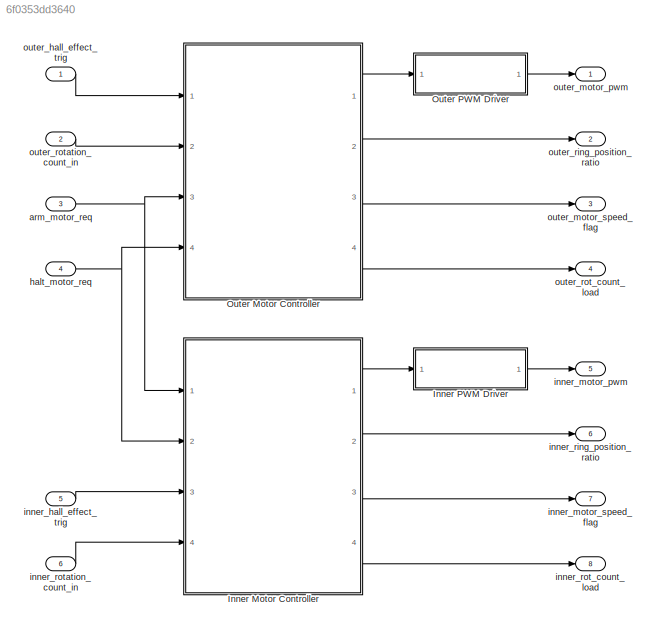
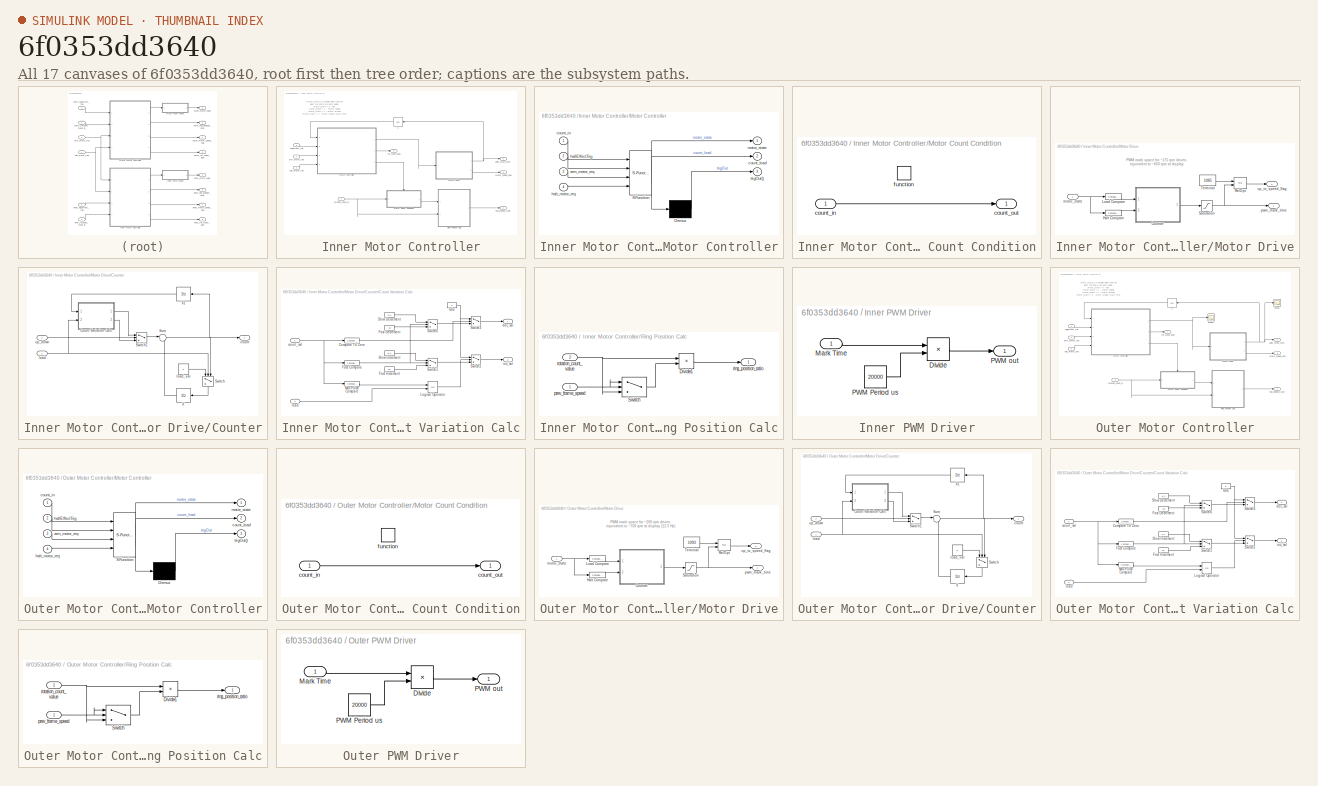
[diagram: thumbnail index - all 17 canvases of the model, root first then tree order]
MODEL slx_6f0353dd3640
KIND model
CONFIG AbsTol = auto
CONFIG EnableMultiTasking = on
CONFIG FixedStep = 1
CONFIG MaxStep = auto
CONFIG MinStep = auto
CONFIG RelTol = 1e-3
CONFIG SampleTimeConstraint = Unconstrained
CONFIG Solver = FixedStepAuto
CONFIG SolverName = FixedStepAuto
CONFIG StartTime = 0.0
CONFIG StopTime = 50000
BLOCK [SubSystem] Inner Motor Controller
  Ports = [4, 4]
  RequestExecContextInheritance = off
  Variant = off
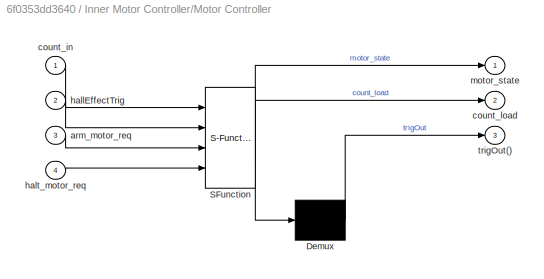
BLOCK [SubSystem] Inner Motor Controller/Motor Controller
  ErrorFcn = Stateflow.Translate.translate
  PermitHierarchicalResolution = ExplicitOnly
  Ports = [4, 3]
  RequestExecContextInheritance = off
  SFBlockType = Chart
  TreatAsAtomicUnit = on
  Variant = off
BLOCK [Demux] Inner Motor Controller/Motor Controller/ Demux 
  Outputs = 1
  Ports = [1, 1]
BLOCK [S-Function] Inner Motor Controller/Motor Controller/ SFunction 
  EnableBusSupport = on
  FunctionName = sf_sfun
  PortCounts = [4 3]
  Ports = [4, 3]
  SFcnIsStateOwnerBlock = off
  SFunctionDeploymentMode = off
  Tag = Stateflow S-Function bldc_motor_controller_full_count 3
BLOCK [Inport] Inner Motor Controller/Motor Controller/arm_motor_req
  IconDisplay = Port number
  Port = 3
BLOCK [Inport] Inner Motor Controller/Motor Controller/count_in
  IconDisplay = Port number
BLOCK [Outport] Inner Motor Controller/Motor Controller/count_load
  IconDisplay = Port number
  Port = 2
BLOCK [Inport] Inner Motor Controller/Motor Controller/hallEffectTrig
  IconDisplay = Port number
  Port = 2
BLOCK [Inport] Inner Motor Controller/Motor Controller/halt_motor_req
  IconDisplay = Port number
  Port = 4
BLOCK [Outport] Inner Motor Controller/Motor Controller/motor_state
  IconDisplay = Port number
BLOCK [Outport] Inner Motor Controller/Motor Controller/trigOut()
  IconDisplay = Port number
  Port = 3
BLOCK [SubSystem] Inner Motor Controller/Motor Count Condition
  Ports = [1, 1, 0, 1]
  RequestExecContextInheritance = off
  TreatAsAtomicUnit = on
  Variant = off
BLOCK [Inport] Inner Motor Controller/Motor Count Condition/count_in
  IconDisplay = Port number
BLOCK [Outport] Inner Motor Controller/Motor Count Condition/count_out
  IconDisplay = Port number
BLOCK [TriggerPort] Inner Motor Controller/Motor Count Condition/function
  Ports = []
  StatesWhenEnabling = held
  TriggerType = function-call
  VariantControl = Variant
BLOCK [SubSystem] Inner Motor Controller/Motor Drive
  Ports = [1, 2]
  RequestExecContextInheritance = off
  Variant = off
BLOCK [SubSystem] Inner Motor Controller/Motor Drive/Counter
  Ports = [2, 1]
  RequestExecContextInheritance = off
  Variant = off
BLOCK [SubSystem] Inner Motor Controller/Motor Drive/Counter/Count Variation Calc
  Ports = [2, 2]
  RequestExecContextInheritance = off
  Variant = off
BLOCK [Reference] Inner Motor Controller/Motor Drive/Counter/Count Variation Calc/Compare To Zero  REF=simulink/Logic and Bit
Operations/Compare
To Zero
  Ports = [1, 1]
  SourceBlock = simulink/Logic and Bit\nOperations/Compare\nTo Zero
  SourceProductBaseCode = SL
  SourceProductName = Simulink
  SourceType = Compare To Zero
BLOCK [Reference] Inner Motor Controller/Motor Drive/Counter/Count Variation Calc/Fast Compare  REF=simulink/Logic and Bit
Operations/Compare
To Constant
  Ports = [1, 1]
  SourceBlock = simulink/Logic and Bit\nOperations/Compare\nTo Constant
  SourceProductBaseCode = SL
  SourceProductName = Simulink
  SourceType = Compare To Constant
BLOCK [Constant] Inner Motor Controller/Motor Drive/Counter/Count Variation Calc/Fast Decrement
  OutDataTypeStr = Inherit: Inherit via back propagation
  Value = -10
BLOCK [Constant] Inner Motor Controller/Motor Drive/Counter/Count Variation Calc/Fast Increment
  Value = 10
BLOCK [Constant] Inner Motor Controller/Motor Drive/Counter/Count Variation Calc/Idle
  OutDataTypeStr = Inherit: Inherit via back propagation
  Value = 0
BLOCK [Logic] Inner Motor Controller/Motor Drive/Counter/Count Variation Calc/Logical Operator
  AllPortsSameDT = off
  Operator = OR
  OutDataTypeStr = boolean
  Ports = [2, 1]
BLOCK [Reference] Inner Motor Controller/Motor Drive/Counter/Count Variation Calc/Max Pulse Compare  REF=simulink/Logic and Bit
Operations/Compare
To Constant
  Ports = [1, 1]
  SourceBlock = simulink/Logic and Bit\nOperations/Compare\nTo Constant
  SourceProductBaseCode = SL
  SourceProductName = Simulink
  SourceType = Compare To Constant
BLOCK [Constant] Inner Motor Controller/Motor Drive/Counter/Count Variation Calc/Slow Decrement
  OutDataTypeStr = Inherit: Inherit via back propagation
  Value = -0.1
BLOCK [Constant] Inner Motor Controller/Motor Drive/Counter/Count Variation Calc/Slow Increment
  Value = 0.1
BLOCK [Switch] Inner Motor Controller/Motor Drive/Counter/Count Variation Calc/Switch1
  Criteria = u2 ~= 0
  OutMax = 1196
  SaturateOnIntegerOverflow = off
  Threshold = .5
BLOCK [Switch] Inner Motor Controller/Motor Drive/Counter/Count Variation Calc/Switch2
  Criteria = u2 ~= 0
  OutMax = 1196
  SaturateOnIntegerOverflow = off
  Threshold = .5
BLOCK [Switch] Inner Motor Controller/Motor Drive/Counter/Count Variation Calc/Switch3
  Criteria = u2 ~= 0
  OutMax = 1196
  SaturateOnIntegerOverflow = off
  Threshold = .5
BLOCK [Switch] Inner Motor Controller/Motor Drive/Counter/Count Variation Calc/Switch6
  Criteria = u2 ~= 0
  OutMax = 1196
  SaturateOnIntegerOverflow = off
  Threshold = .5
BLOCK [Inport] Inner Motor Controller/Motor Drive/Counter/Count Variation Calc/count_val
  IconDisplay = Port number
BLOCK [Outport] Inner Motor Controller/Motor Drive/Counter/Count Variation Calc/dec_val
  IconDisplay = Port number
BLOCK [Outport] Inner Motor Controller/Motor Drive/Counter/Count Variation Calc/inc_val
  IconDisplay = Port number
  Port = 2
BLOCK [Inport] Inner Motor Controller/Motor Drive/Counter/Count Variation Calc/load
  IconDisplay = Port number
  Port = 2
BLOCK [Sum] Inner Motor Controller/Motor Drive/Counter/Sum
  IconShape = round
  InputSameDT = off
  Inputs = |++
  OutDataTypeStr = Inherit: Inherit via back propagation
  OutMax = 1196
  OutMin = 0
  Ports = [2, 1]
  SaturateOnIntegerOverflow = off
BLOCK [Switch] Inner Motor Controller/Motor Drive/Counter/Switch
  Criteria = u2 ~= 0
  OutMax = 1196
  SaturateOnIntegerOverflow = off
  Threshold = .5
BLOCK [Switch] Inner Motor Controller/Motor Drive/Counter/Switch1
  Criteria = u2 ~= 0
  SaturateOnIntegerOverflow = off
  Threshold = .5
BLOCK [UnitDelay] Inner Motor Controller/Motor Drive/Counter/X
  SampleTime = -1
  StateName = X
BLOCK [UnitDelay] Inner Motor Controller/Motor Drive/Counter/X1
  SampleTime = -1
  StateName = X
BLOCK [Outport] Inner Motor Controller/Motor Drive/Counter/count
  IconDisplay = Port number
BLOCK [Inport] Inner Motor Controller/Motor Drive/Counter/load
  IconDisplay = Port number
BLOCK [Constant] Inner Motor Controller/Motor Drive/Counter/load_var
  Value = 0
BLOCK [Inport] Inner Motor Controller/Motor Drive/Counter/up_down
  IconDisplay = Port number
  Port = 2
BLOCK [Reference] Inner Motor Controller/Motor Drive/Halt Compare  REF=simulink/Logic and Bit
Operations/Compare
To Constant
  Ports = [1, 1]
  SourceBlock = simulink/Logic and Bit\nOperations/Compare\nTo Constant
  SourceProductBaseCode = SL
  SourceProductName = Simulink
  SourceType = Compare To Constant
BLOCK [Reference] Inner Motor Controller/Motor Drive/Load Compare  REF=simulink/Logic and Bit
Operations/Compare
To Constant
  Ports = [1, 1]
  SourceBlock = simulink/Logic and Bit\nOperations/Compare\nTo Constant
  SourceProductBaseCode = SL
  SourceProductName = Simulink
  SourceType = Compare To Constant
BLOCK [RelationalOperator] Inner Motor Controller/Motor Drive/RelOpt
  Operator = <=
  OutDataTypeStr = boolean
  Ports = [2, 1]
BLOCK [Saturate] Inner Motor Controller/Motor Drive/Saturation
  InputPortMap = u0
  OutDataTypeStr = Inherit: Inherit via back propagation
  Ports = [1, 1]
  UpperLimit = 1200
BLOCK [Constant] Inner Motor Controller/Motor Drive/Terminal
  OutDataTypeStr = Inherit: Inherit via back propagation
  Value = 1085
BLOCK [Inport] Inner Motor Controller/Motor Drive/motor_state
  IconDisplay = Port number
BLOCK [Outport] Inner Motor Controller/Motor Drive/pwm_mark_time
  IconDisplay = Port number
BLOCK [Outport] Inner Motor Controller/Motor Drive/up_to_speed_flag
  IconDisplay = Port number
  Port = 2
BLOCK [SubSystem] Inner Motor Controller/Ring Position Calc
  Ports = [2, 1]
  RequestExecContextInheritance = off
  Variant = off
BLOCK [Product] Inner Motor Controller/Ring Position Calc/Divide1
  InputSameDT = off
  Inputs = */
  OutDataTypeStr = single
  Ports = [2, 1]
  RndMeth = Round
  SaturateOnIntegerOverflow = off
BLOCK [Switch] Inner Motor Controller/Ring Position Calc/Switch
  Criteria = u2 ~= 0
  InputSameDT = off
  SaturateOnIntegerOverflow = off
BLOCK [Inport] Inner Motor Controller/Ring Position Calc/prev_frame_speed
  IconDisplay = Port number
BLOCK [Outport] Inner Motor Controller/Ring Position Calc/ring_position_ratio
  IconDisplay = Port number
BLOCK [Inport] Inner Motor Controller/Ring Position Calc/rotation_count_value
  IconDisplay = Port number
  Port = 2
BLOCK [UnitDelay] Inner Motor Controller/X
  SampleTime = -1
  StateName = X
BLOCK [Inport] Inner Motor Controller/arm_motor_req
  IconDisplay = Port number
  OutDataTypeStr = boolean
BLOCK [Inport] Inner Motor Controller/hall_effect_trig
  IconDisplay = Port number
  OutDataTypeStr = boolean
  Port = 3
BLOCK [Inport] Inner Motor Controller/halt_motor_req
  IconDisplay = Port number
  OutDataTypeStr = boolean
  Port = 2
BLOCK [Outport] Inner Motor Controller/motor_speed_flag
  IconDisplay = Port number
  Port = 3
BLOCK [Outport] Inner Motor Controller/pwm_mark_time
  IconDisplay = Port number
BLOCK [Outport] Inner Motor Controller/ring_position_ratio
  IconDisplay = Port number
  Port = 2
BLOCK [Outport] Inner Motor Controller/rot_count_load
  IconDisplay = Port number
  Port = 4
BLOCK [Inport] Inner Motor Controller/rotation_count_in
  IconDisplay = Port number
  Port = 4
BLOCK [SubSystem] Inner PWM Driver
  Ports = [1, 1]
  RequestExecContextInheritance = off
  Variant = off
BLOCK [Product] Inner PWM Driver/Divide
  InputSameDT = off
  Inputs = */
  OutDataTypeStr = Inherit: Inherit via internal rule
  Ports = [2, 1]
  RndMeth = Floor
  SaturateOnIntegerOverflow = off
BLOCK [Inport] Inner PWM Driver/Mark Time
  IconDisplay = Port number
BLOCK [Constant] Inner PWM Driver/PWM Period us
  Value = 20000
BLOCK [Outport] Inner PWM Driver/PWM out
  IconDisplay = Port number
BLOCK [SubSystem] Outer Motor Controller
  Ports = [4, 4]
  RequestExecContextInheritance = off
  Variant = off
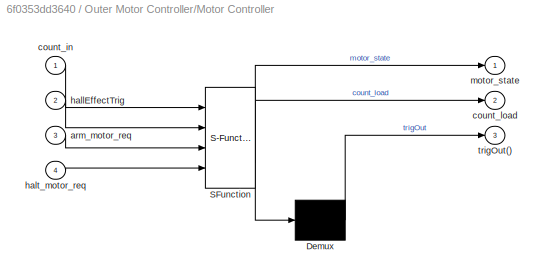
BLOCK [SubSystem] Outer Motor Controller/Motor Controller
  ErrorFcn = Stateflow.Translate.translate
  PermitHierarchicalResolution = ExplicitOnly
  Ports = [4, 3]
  RequestExecContextInheritance = off
  SFBlockType = Chart
  TreatAsAtomicUnit = on
  Variant = off
BLOCK [Demux] Outer Motor Controller/Motor Controller/ Demux 
  Outputs = 1
  Ports = [1, 1]
BLOCK [S-Function] Outer Motor Controller/Motor Controller/ SFunction 
  EnableBusSupport = on
  FunctionName = sf_sfun
  PortCounts = [4 3]
  Ports = [4, 3]
  SFcnIsStateOwnerBlock = off
  SFunctionDeploymentMode = off
  Tag = Stateflow S-Function bldc_motor_controller_full_count 2
BLOCK [Inport] Outer Motor Controller/Motor Controller/arm_motor_req
  IconDisplay = Port number
  Port = 3
BLOCK [Inport] Outer Motor Controller/Motor Controller/count_in
  IconDisplay = Port number
BLOCK [Outport] Outer Motor Controller/Motor Controller/count_load
  IconDisplay = Port number
  Port = 2
BLOCK [Inport] Outer Motor Controller/Motor Controller/hallEffectTrig
  IconDisplay = Port number
  Port = 2
BLOCK [Inport] Outer Motor Controller/Motor Controller/halt_motor_req
  IconDisplay = Port number
  Port = 4
BLOCK [Outport] Outer Motor Controller/Motor Controller/motor_state
  IconDisplay = Port number
BLOCK [Outport] Outer Motor Controller/Motor Controller/trigOut()
  IconDisplay = Port number
  Port = 3
BLOCK [SubSystem] Outer Motor Controller/Motor Count Condition
  Ports = [1, 1, 0, 1]
  RequestExecContextInheritance = off
  TreatAsAtomicUnit = on
  Variant = off
BLOCK [Inport] Outer Motor Controller/Motor Count Condition/count_in
  IconDisplay = Port number
BLOCK [Outport] Outer Motor Controller/Motor Count Condition/count_out
  IconDisplay = Port number
BLOCK [TriggerPort] Outer Motor Controller/Motor Count Condition/function
  Ports = []
  StatesWhenEnabling = held
  TriggerType = function-call
  VariantControl = Variant
BLOCK [SubSystem] Outer Motor Controller/Motor Drive
  Ports = [1, 2]
  RequestExecContextInheritance = off
  Variant = off
BLOCK [SubSystem] Outer Motor Controller/Motor Drive/Counter
  Ports = [2, 1]
  RequestExecContextInheritance = off
  Variant = off
BLOCK [SubSystem] Outer Motor Controller/Motor Drive/Counter/Count Variation Calc
  Ports = [2, 2]
  RequestExecContextInheritance = off
  Variant = off
BLOCK [Reference] Outer Motor Controller/Motor Drive/Counter/Count Variation Calc/Compare To Zero  REF=simulink/Logic and Bit
Operations/Compare
To Zero
  Ports = [1, 1]
  SourceBlock = simulink/Logic and Bit\nOperations/Compare\nTo Zero
  SourceProductBaseCode = SL
  SourceProductName = Simulink
  SourceType = Compare To Zero
BLOCK [Reference] Outer Motor Controller/Motor Drive/Counter/Count Variation Calc/Fast Compare  REF=simulink/Logic and Bit
Operations/Compare
To Constant
  Ports = [1, 1]
  SourceBlock = simulink/Logic and Bit\nOperations/Compare\nTo Constant
  SourceProductBaseCode = SL
  SourceProductName = Simulink
  SourceType = Compare To Constant
BLOCK [Constant] Outer Motor Controller/Motor Drive/Counter/Count Variation Calc/Fast Decrement
  OutDataTypeStr = Inherit: Inherit via back propagation
  Value = -10
BLOCK [Constant] Outer Motor Controller/Motor Drive/Counter/Count Variation Calc/Fast Increment
  Value = 10
BLOCK [Constant] Outer Motor Controller/Motor Drive/Counter/Count Variation Calc/Idle
  OutDataTypeStr = Inherit: Inherit via back propagation
  Value = 0
BLOCK [Logic] Outer Motor Controller/Motor Drive/Counter/Count Variation Calc/Logical Operator
  AllPortsSameDT = off
  Operator = OR
  OutDataTypeStr = boolean
  Ports = [2, 1]
BLOCK [Reference] Outer Motor Controller/Motor Drive/Counter/Count Variation Calc/Max Pulse Compare  REF=simulink/Logic and Bit
Operations/Compare
To Constant
  Ports = [1, 1]
  SourceBlock = simulink/Logic and Bit\nOperations/Compare\nTo Constant
  SourceProductBaseCode = SL
  SourceProductName = Simulink
  SourceType = Compare To Constant
BLOCK [Constant] Outer Motor Controller/Motor Drive/Counter/Count Variation Calc/Slow Decrement
  OutDataTypeStr = Inherit: Inherit via back propagation
  Value = -0.1
BLOCK [Constant] Outer Motor Controller/Motor Drive/Counter/Count Variation Calc/Slow Increment
  Value = 0.1
BLOCK [Switch] Outer Motor Controller/Motor Drive/Counter/Count Variation Calc/Switch1
  Criteria = u2 ~= 0
  OutMax = 1196
  SaturateOnIntegerOverflow = off
  Threshold = .5
BLOCK [Switch] Outer Motor Controller/Motor Drive/Counter/Count Variation Calc/Switch2
  Criteria = u2 ~= 0
  OutMax = 1196
  SaturateOnIntegerOverflow = off
  Threshold = .5
BLOCK [Switch] Outer Motor Controller/Motor Drive/Counter/Count Variation Calc/Switch3
  Criteria = u2 ~= 0
  OutMax = 1196
  SaturateOnIntegerOverflow = off
  Threshold = .5
BLOCK [Switch] Outer Motor Controller/Motor Drive/Counter/Count Variation Calc/Switch6
  Criteria = u2 ~= 0
  OutMax = 1196
  SaturateOnIntegerOverflow = off
  Threshold = .5
BLOCK [Inport] Outer Motor Controller/Motor Drive/Counter/Count Variation Calc/count_val
  IconDisplay = Port number
BLOCK [Outport] Outer Motor Controller/Motor Drive/Counter/Count Variation Calc/dec_val
  IconDisplay = Port number
BLOCK [Outport] Outer Motor Controller/Motor Drive/Counter/Count Variation Calc/inc_val
  IconDisplay = Port number
  Port = 2
BLOCK [Inport] Outer Motor Controller/Motor Drive/Counter/Count Variation Calc/load
  IconDisplay = Port number
  Port = 2
BLOCK [Sum] Outer Motor Controller/Motor Drive/Counter/Sum
  IconShape = round
  InputSameDT = off
  Inputs = |++
  OutDataTypeStr = Inherit: Inherit via back propagation
  OutMax = 1196
  OutMin = 0
  Ports = [2, 1]
  SaturateOnIntegerOverflow = off
BLOCK [Switch] Outer Motor Controller/Motor Drive/Counter/Switch
  Criteria = u2 ~= 0
  OutMax = 1196
  SaturateOnIntegerOverflow = off
  Threshold = .5
BLOCK [Switch] Outer Motor Controller/Motor Drive/Counter/Switch1
  Criteria = u2 ~= 0
  SaturateOnIntegerOverflow = off
  Threshold = .5
BLOCK [UnitDelay] Outer Motor Controller/Motor Drive/Counter/X
  SampleTime = -1
  StateName = X
BLOCK [UnitDelay] Outer Motor Controller/Motor Drive/Counter/X1
  SampleTime = -1
  StateName = X
BLOCK [Outport] Outer Motor Controller/Motor Drive/Counter/count
  IconDisplay = Port number
BLOCK [Inport] Outer Motor Controller/Motor Drive/Counter/load
  IconDisplay = Port number
BLOCK [Constant] Outer Motor Controller/Motor Drive/Counter/load_var
  Value = 0
BLOCK [Inport] Outer Motor Controller/Motor Drive/Counter/up_down
  IconDisplay = Port number
  Port = 2
BLOCK [Reference] Outer Motor Controller/Motor Drive/Halt Compare  REF=simulink/Logic and Bit
Operations/Compare
To Constant
  Ports = [1, 1]
  SourceBlock = simulink/Logic and Bit\nOperations/Compare\nTo Constant
  SourceProductBaseCode = SL
  SourceProductName = Simulink
  SourceType = Compare To Constant
BLOCK [Reference] Outer Motor Controller/Motor Drive/Load Compare  REF=simulink/Logic and Bit
Operations/Compare
To Constant
  Ports = [1, 1]
  SourceBlock = simulink/Logic and Bit\nOperations/Compare\nTo Constant
  SourceProductBaseCode = SL
  SourceProductName = Simulink
  SourceType = Compare To Constant
BLOCK [RelationalOperator] Outer Motor Controller/Motor Drive/RelOpt
  Operator = <=
  OutDataTypeStr = boolean
  Ports = [2, 1]
BLOCK [Saturate] Outer Motor Controller/Motor Drive/Saturation
  InputPortMap = u0
  OutDataTypeStr = Inherit: Inherit via back propagation
  Ports = [1, 1]
  UpperLimit = 1250
BLOCK [Constant] Outer Motor Controller/Motor Drive/Terminal
  OutDataTypeStr = Inherit: Inherit via back propagation
  Value = 1093
BLOCK [Inport] Outer Motor Controller/Motor Drive/motor_state
  IconDisplay = Port number
BLOCK [Outport] Outer Motor Controller/Motor Drive/pwm_mark_time
  IconDisplay = Port number
BLOCK [Outport] Outer Motor Controller/Motor Drive/up_to_speed_flag
  IconDisplay = Port number
  Port = 2
BLOCK [SubSystem] Outer Motor Controller/Ring Position Calc
  Ports = [2, 1]
  RequestExecContextInheritance = off
  Variant = off
BLOCK [Product] Outer Motor Controller/Ring Position Calc/Divide1
  InputSameDT = off
  Inputs = */
  OutDataTypeStr = single
  Ports = [2, 1]
  RndMeth = Round
  SaturateOnIntegerOverflow = off
BLOCK [Switch] Outer Motor Controller/Ring Position Calc/Switch
  Criteria = u2 ~= 0
  InputSameDT = off
  SaturateOnIntegerOverflow = off
BLOCK [Inport] Outer Motor Controller/Ring Position Calc/prev_frame_speed
  IconDisplay = Port number
BLOCK [Outport] Outer Motor Controller/Ring Position Calc/ring_position_ratio
  IconDisplay = Port number
BLOCK [Inport] Outer Motor Controller/Ring Position Calc/rotation_count_value
  IconDisplay = Port number
  Port = 2
BLOCK [Scope] Outer Motor Controller/Scope
  NumInputPorts = 1
  Ports = [1]
  ScopeSpecificationString = Simulink.scopes.TimeScopeBlockCfg('CurrentConfiguration', extmgr.ConfigurationSet(extmgr.Configuration('Core','General UI',true),extmgr.Configuration('Core','Source UI',true),extmgr.Configuration('Sources','WiredSimulink',true),extmgr.Configuration('Visuals','Time Domain',true,'SerializedDisplays',{struct('MinYLimReal','-156.25','MaxYLimReal','1406.25','YLabelReal','','MinYLimMag',' 0.00000','MaxY...<+1431ch>
BLOCK [Scope] Outer Motor Controller/Scope1
  NumInputPorts = 1
  Ports = [1]
  ScopeSpecificationString = Simulink.scopes.TimeScopeBlockCfg('CurrentConfiguration', extmgr.ConfigurationSet(extmgr.Configuration('Core','General UI',true),extmgr.Configuration('Core','Source UI',true),extmgr.Configuration('Sources','WiredSimulink',true,'DataLoggingVariableName','ScopeData1'),extmgr.Configuration('Visuals','Time Domain',true,'SerializedDisplays',{struct('MinYLimReal','-0.375','MaxYLimReal','3.375','YLabelRe...<+1375ch>
BLOCK [UnitDelay] Outer Motor Controller/X
  SampleTime = -1
  StateName = X
BLOCK [Inport] Outer Motor Controller/arm_motor_req
  IconDisplay = Port number
  OutDataTypeStr = boolean
  Port = 3
BLOCK [Inport] Outer Motor Controller/hall_effect_trig
  IconDisplay = Port number
  OutDataTypeStr = boolean
BLOCK [Inport] Outer Motor Controller/halt_motor_req
  IconDisplay = Port number
  OutDataTypeStr = boolean
  Port = 4
BLOCK [Outport] Outer Motor Controller/motor_speed_flag
  IconDisplay = Port number
  Port = 3
BLOCK [Outport] Outer Motor Controller/pwm_mark_time
  IconDisplay = Port number
BLOCK [Outport] Outer Motor Controller/ring_position_ratio
  IconDisplay = Port number
  Port = 2
BLOCK [Outport] Outer Motor Controller/rot_count_load
  IconDisplay = Port number
  Port = 4
BLOCK [Inport] Outer Motor Controller/rotation_count_in
  IconDisplay = Port number
  Port = 2
BLOCK [SubSystem] Outer PWM Driver
  Ports = [1, 1]
  RequestExecContextInheritance = off
  Variant = off
BLOCK [Product] Outer PWM Driver/Divide
  InputSameDT = off
  Inputs = */
  OutDataTypeStr = Inherit: Inherit via internal rule
  Ports = [2, 1]
  RndMeth = Floor
  SaturateOnIntegerOverflow = off
BLOCK [Inport] Outer PWM Driver/Mark Time
  IconDisplay = Port number
BLOCK [Constant] Outer PWM Driver/PWM Period us
  Value = 20000
BLOCK [Outport] Outer PWM Driver/PWM out
  IconDisplay = Port number
BLOCK [Inport] arm_motor_req
  IconDisplay = Port number
  Port = 3
BLOCK [Inport] halt_motor_req
  IconDisplay = Port number
  Port = 4
BLOCK [Inport] inner_hall_effect_trig
  IconDisplay = Port number
  OutDataTypeStr = boolean
  Port = 5
BLOCK [Outport] inner_motor_pwm
  IconDisplay = Port number
  Port = 5
BLOCK [Outport] inner_motor_speed_flag
  IconDisplay = Port number
  Port = 7
BLOCK [Outport] inner_ring_position_ratio
  IconDisplay = Port number
  Port = 6
BLOCK [Outport] inner_rot_count_load
  IconDisplay = Port number
  Port = 8
BLOCK [Inport] inner_rotation_count_in
  IconDisplay = Port number
  Port = 6
BLOCK [Inport] outer_hall_effect_trig
  IconDisplay = Port number
  OutDataTypeStr = boolean
BLOCK [Outport] outer_motor_pwm
  IconDisplay = Port number
BLOCK [Outport] outer_motor_speed_flag
  IconDisplay = Port number
  Port = 3
BLOCK [Outport] outer_ring_position_ratio
  IconDisplay = Port number
  Port = 2
BLOCK [Outport] outer_rot_count_load
  IconDisplay = Port number
  Port = 4
BLOCK [Inport] outer_rotation_count_in
  IconDisplay = Port number
  Port = 2
ANNOTATION Inner Motor Controller: motor_state is a variable which controls what the ESC is currently doing. motor_state = 0 - idle motor_state = 1 - motor halting motor_state = 2 - motor arming motor_state = 3 - motor steady state (PID)
ANNOTATION Inner Motor Controller/Motor Drive: PWM mark space for ~175 rpm driven, equivalent to ~450 rpm at display
ANNOTATION Outer Motor Controller: motor_state is a variable which controls what the ESC is currently doing. motor_state = 0 - idle motor_state = 1 - motor halting motor_state = 2 - motor arming motor_state = 3 - motor steady state (PID)
ANNOTATION Outer Motor Controller/Motor Drive: PWM mark space for ~200 rpm driven, equivalent to ~750 rpm at display (12.5 Hz)
LINE Inner Motor Controller/Motor Controller:1 -> Inner Motor Controller/Motor Drive:1
LINE Inner Motor Controller/Motor Controller:2 -> Inner Motor Controller/rot_count_load:1
LINE Inner Motor Controller/Motor Controller:3 -> Inner Motor Controller/Motor Count Condition:trigger
LINE Inner Motor Controller/Motor Count Condition/count_in:1 -> Inner Motor Controller/Motor Count Condition/count_out:1
LINE Inner Motor Controller/Motor Count Condition:1 -> Inner Motor Controller/Ring Position Calc:1
LINE Inner Motor Controller/Motor Drive/Counter/Count Variation Calc/Compare To Zero:1 -> Inner Motor Controller/Motor Drive/Counter/Count Variation Calc/Switch3:2
NET Inner Motor Controller/Motor Drive/Counter/Count Variation Calc/Fast Compare:1 -> Inner Motor Controller/Motor Drive/Counter/Count Variation Calc/Switch1:2, Inner Motor Controller/Motor Drive/Counter/Count Variation Calc/Switch6:2
LINE Inner Motor Controller/Motor Drive/Counter/Count Variation Calc/Fast Decrement:1 -> Inner Motor Controller/Motor Drive/Counter/Count Variation Calc/Switch6:3
LINE Inner Motor Controller/Motor Drive/Counter/Count Variation Calc/Fast Increment:1 -> Inner Motor Controller/Motor Drive/Counter/Count Variation Calc/Switch1:3
NET Inner Motor Controller/Motor Drive/Counter/Count Variation Calc/Idle:1 -> Inner Motor Controller/Motor Drive/Counter/Count Variation Calc/Switch2:1, Inner Motor Controller/Motor Drive/Counter/Count Variation Calc/Switch3:1
LINE Inner Motor Controller/Motor Drive/Counter/Count Variation Calc/Logical Operator:1 -> Inner Motor Controller/Motor Drive/Counter/Count Variation Calc/Switch2:2
LINE Inner Motor Controller/Motor Drive/Counter/Count Variation Calc/Max Pulse Compare:1 -> Inner Motor Controller/Motor Drive/Counter/Count Variation Calc/Logical Operator:1
LINE Inner Motor Controller/Motor Drive/Counter/Count Variation Calc/Slow Decrement:1 -> Inner Motor Controller/Motor Drive/Counter/Count Variation Calc/Switch6:1
LINE Inner Motor Controller/Motor Drive/Counter/Count Variation Calc/Slow Increment:1 -> Inner Motor Controller/Motor Drive/Counter/Count Variation Calc/Switch1:1
LINE Inner Motor Controller/Motor Drive/Counter/Count Variation Calc/Switch1:1 -> Inner Motor Controller/Motor Drive/Counter/Count Variation Calc/Switch2:3
LINE Inner Motor Controller/Motor Drive/Counter/Count Variation Calc/Switch2:1 -> Inner Motor Controller/Motor Drive/Counter/Count Variation Calc/inc_val:1
LINE Inner Motor Controller/Motor Drive/Counter/Count Variation Calc/Switch3:1 -> Inner Motor Controller/Motor Drive/Counter/Count Variation Calc/dec_val:1
LINE Inner Motor Controller/Motor Drive/Counter/Count Variation Calc/Switch6:1 -> Inner Motor Controller/Motor Drive/Counter/Count Variation Calc/Switch3:3
NET Inner Motor Controller/Motor Drive/Counter/Count Variation Calc/count_val:1 -> Inner Motor Controller/Motor Drive/Counter/Count Variation Calc/Compare To Zero:1, Inner Motor Controller/Motor Drive/Counter/Count Variation Calc/Fast Compare:1, Inner Motor Controller/Motor Drive/Counter/Count Variation Calc/Max Pulse Compare:1
LINE Inner Motor Controller/Motor Drive/Counter/Count Variation Calc/load:1 -> Inner Motor Controller/Motor Drive/Counter/Count Variation Calc/Logical Operator:2
LINE Inner Motor Controller/Motor Drive/Counter/Count Variation Calc:1 -> Inner Motor Controller/Motor Drive/Counter/Switch1:1
LINE Inner Motor Controller/Motor Drive/Counter/Count Variation Calc:2 -> Inner Motor Controller/Motor Drive/Counter/Switch1:3
NET Inner Motor Controller/Motor Drive/Counter/Sum:1 -> Inner Motor Controller/Motor Drive/Counter/Switch:3, Inner Motor Controller/Motor Drive/Counter/X1:1, Inner Motor Controller/Motor Drive/Counter/count:1
LINE Inner Motor Controller/Motor Drive/Counter/Switch1:1 -> Inner Motor Controller/Motor Drive/Counter/Sum:1
LINE Inner Motor Controller/Motor Drive/Counter/Switch:1 -> Inner Motor Controller/Motor Drive/Counter/X:1
LINE Inner Motor Controller/Motor Drive/Counter/X1:1 -> Inner Motor Controller/Motor Drive/Counter/Count Variation Calc:1
LINE Inner Motor Controller/Motor Drive/Counter/X:1 -> Inner Motor Controller/Motor Drive/Counter/Sum:2
NET Inner Motor Controller/Motor Drive/Counter/load:1 -> Inner Motor Controller/Motor Drive/Counter/Count Variation Calc:2, Inner Motor Controller/Motor Drive/Counter/Switch:2
LINE Inner Motor Controller/Motor Drive/Counter/load_var:1 -> Inner Motor Controller/Motor Drive/Counter/Switch:1
LINE Inner Motor Controller/Motor Drive/Counter/up_down:1 -> Inner Motor Controller/Motor Drive/Counter/Switch1:2
LINE Inner Motor Controller/Motor Drive/Counter:1 -> Inner Motor Controller/Motor Drive/Saturation:1
LINE Inner Motor Controller/Motor Drive/Halt Compare:1 -> Inner Motor Controller/Motor Drive/Counter:2
LINE Inner Motor Controller/Motor Drive/Load Compare:1 -> Inner Motor Controller/Motor Drive/Counter:1
LINE Inner Motor Controller/Motor Drive/RelOpt:1 -> Inner Motor Controller/Motor Drive/up_to_speed_flag:1
NET Inner Motor Controller/Motor Drive/Saturation:1 -> Inner Motor Controller/Motor Drive/RelOpt:2, Inner Motor Controller/Motor Drive/pwm_mark_time:1
LINE Inner Motor Controller/Motor Drive/Terminal:1 -> Inner Motor Controller/Motor Drive/RelOpt:1
NET Inner Motor Controller/Motor Drive/motor_state:1 -> Inner Motor Controller/Motor Drive/Halt Compare:1, Inner Motor Controller/Motor Drive/Load Compare:1
NET Inner Motor Controller/Motor Drive:1 -> Inner Motor Controller/X:1, Inner Motor Controller/pwm_mark_time:1
LINE Inner Motor Controller/Motor Drive:2 -> Inner Motor Controller/motor_speed_flag:1
LINE Inner Motor Controller/Ring Position Calc/Divide1:1 -> Inner Motor Controller/Ring Position Calc/ring_position_ratio:1
LINE Inner Motor Controller/Ring Position Calc/Switch:1 -> Inner Motor Controller/Ring Position Calc/Divide1:2
NET Inner Motor Controller/Ring Position Calc/prev_frame_speed:1 -> Inner Motor Controller/Ring Position Calc/Switch:1, Inner Motor Controller/Ring Position Calc/Switch:2
NET Inner Motor Controller/Ring Position Calc/rotation_count_value:1 -> Inner Motor Controller/Ring Position Calc/Divide1:1, Inner Motor Controller/Ring Position Calc/Switch:3
LINE Inner Motor Controller/Ring Position Calc:1 -> Inner Motor Controller/ring_position_ratio:1
LINE Inner Motor Controller/X:1 -> Inner Motor Controller/Motor Controller:1
LINE Inner Motor Controller/arm_motor_req:1 -> Inner Motor Controller/Motor Controller:3
LINE Inner Motor Controller/hall_effect_trig:1 -> Inner Motor Controller/Motor Controller:2
LINE Inner Motor Controller/halt_motor_req:1 -> Inner Motor Controller/Motor Controller:4
NET Inner Motor Controller/rotation_count_in:1 -> Inner Motor Controller/Motor Count Condition:1, Inner Motor Controller/Ring Position Calc:2
LINE Inner Motor Controller:1 -> Inner PWM Driver:1
LINE Inner Motor Controller:2 -> inner_ring_position_ratio:1
LINE Inner Motor Controller:3 -> inner_motor_speed_flag:1
LINE Inner Motor Controller:4 -> inner_rot_count_load:1
LINE Inner PWM Driver/Divide:1 -> Inner PWM Driver/PWM out:1
LINE Inner PWM Driver/Mark Time:1 -> Inner PWM Driver/Divide:1
LINE Inner PWM Driver/PWM Period us:1 -> Inner PWM Driver/Divide:2
LINE Inner PWM Driver:1 -> inner_motor_pwm:1
NET Outer Motor Controller/Motor Controller:1 -> Outer Motor Controller/Motor Drive:1, Outer Motor Controller/Scope1:1
LINE Outer Motor Controller/Motor Controller:2 -> Outer Motor Controller/rot_count_load:1
LINE Outer Motor Controller/Motor Controller:3 -> Outer Motor Controller/Motor Count Condition:trigger
LINE Outer Motor Controller/Motor Count Condition/count_in:1 -> Outer Motor Controller/Motor Count Condition/count_out:1
LINE Outer Motor Controller/Motor Count Condition:1 -> Outer Motor Controller/Ring Position Calc:1
LINE Outer Motor Controller/Motor Drive/Counter/Count Variation Calc/Compare To Zero:1 -> Outer Motor Controller/Motor Drive/Counter/Count Variation Calc/Switch3:2
NET Outer Motor Controller/Motor Drive/Counter/Count Variation Calc/Fast Compare:1 -> Outer Motor Controller/Motor Drive/Counter/Count Variation Calc/Switch1:2, Outer Motor Controller/Motor Drive/Counter/Count Variation Calc/Switch6:2
LINE Outer Motor Controller/Motor Drive/Counter/Count Variation Calc/Fast Decrement:1 -> Outer Motor Controller/Motor Drive/Counter/Count Variation Calc/Switch6:3
LINE Outer Motor Controller/Motor Drive/Counter/Count Variation Calc/Fast Increment:1 -> Outer Motor Controller/Motor Drive/Counter/Count Variation Calc/Switch1:3
NET Outer Motor Controller/Motor Drive/Counter/Count Variation Calc/Idle:1 -> Outer Motor Controller/Motor Drive/Counter/Count Variation Calc/Switch2:1, Outer Motor Controller/Motor Drive/Counter/Count Variation Calc/Switch3:1
LINE Outer Motor Controller/Motor Drive/Counter/Count Variation Calc/Logical Operator:1 -> Outer Motor Controller/Motor Drive/Counter/Count Variation Calc/Switch2:2
LINE Outer Motor Controller/Motor Drive/Counter/Count Variation Calc/Max Pulse Compare:1 -> Outer Motor Controller/Motor Drive/Counter/Count Variation Calc/Logical Operator:1
LINE Outer Motor Controller/Motor Drive/Counter/Count Variation Calc/Slow Decrement:1 -> Outer Motor Controller/Motor Drive/Counter/Count Variation Calc/Switch6:1
LINE Outer Motor Controller/Motor Drive/Counter/Count Variation Calc/Slow Increment:1 -> Outer Motor Controller/Motor Drive/Counter/Count Variation Calc/Switch1:1
LINE Outer Motor Controller/Motor Drive/Counter/Count Variation Calc/Switch1:1 -> Outer Motor Controller/Motor Drive/Counter/Count Variation Calc/Switch2:3
LINE Outer Motor Controller/Motor Drive/Counter/Count Variation Calc/Switch2:1 -> Outer Motor Controller/Motor Drive/Counter/Count Variation Calc/inc_val:1
LINE Outer Motor Controller/Motor Drive/Counter/Count Variation Calc/Switch3:1 -> Outer Motor Controller/Motor Drive/Counter/Count Variation Calc/dec_val:1
LINE Outer Motor Controller/Motor Drive/Counter/Count Variation Calc/Switch6:1 -> Outer Motor Controller/Motor Drive/Counter/Count Variation Calc/Switch3:3
NET Outer Motor Controller/Motor Drive/Counter/Count Variation Calc/count_val:1 -> Outer Motor Controller/Motor Drive/Counter/Count Variation Calc/Compare To Zero:1, Outer Motor Controller/Motor Drive/Counter/Count Variation Calc/Fast Compare:1, Outer Motor Controller/Motor Drive/Counter/Count Variation Calc/Max Pulse Compare:1
LINE Outer Motor Controller/Motor Drive/Counter/Count Variation Calc/load:1 -> Outer Motor Controller/Motor Drive/Counter/Count Variation Calc/Logical Operator:2
LINE Outer Motor Controller/Motor Drive/Counter/Count Variation Calc:1 -> Outer Motor Controller/Motor Drive/Counter/Switch1:1
LINE Outer Motor Controller/Motor Drive/Counter/Count Variation Calc:2 -> Outer Motor Controller/Motor Drive/Counter/Switch1:3
NET Outer Motor Controller/Motor Drive/Counter/Sum:1 -> Outer Motor Controller/Motor Drive/Counter/Switch:3, Outer Motor Controller/Motor Drive/Counter/X1:1, Outer Motor Controller/Motor Drive/Counter/count:1
LINE Outer Motor Controller/Motor Drive/Counter/Switch1:1 -> Outer Motor Controller/Motor Drive/Counter/Sum:1
LINE Outer Motor Controller/Motor Drive/Counter/Switch:1 -> Outer Motor Controller/Motor Drive/Counter/X:1
LINE Outer Motor Controller/Motor Drive/Counter/X1:1 -> Outer Motor Controller/Motor Drive/Counter/Count Variation Calc:1
LINE Outer Motor Controller/Motor Drive/Counter/X:1 -> Outer Motor Controller/Motor Drive/Counter/Sum:2
NET Outer Motor Controller/Motor Drive/Counter/load:1 -> Outer Motor Controller/Motor Drive/Counter/Count Variation Calc:2, Outer Motor Controller/Motor Drive/Counter/Switch:2
LINE Outer Motor Controller/Motor Drive/Counter/load_var:1 -> Outer Motor Controller/Motor Drive/Counter/Switch:1
LINE Outer Motor Controller/Motor Drive/Counter/up_down:1 -> Outer Motor Controller/Motor Drive/Counter/Switch1:2
LINE Outer Motor Controller/Motor Drive/Counter:1 -> Outer Motor Controller/Motor Drive/Saturation:1
LINE Outer Motor Controller/Motor Drive/Halt Compare:1 -> Outer Motor Controller/Motor Drive/Counter:2
LINE Outer Motor Controller/Motor Drive/Load Compare:1 -> Outer Motor Controller/Motor Drive/Counter:1
LINE Outer Motor Controller/Motor Drive/RelOpt:1 -> Outer Motor Controller/Motor Drive/up_to_speed_flag:1
NET Outer Motor Controller/Motor Drive/Saturation:1 -> Outer Motor Controller/Motor Drive/RelOpt:2, Outer Motor Controller/Motor Drive/pwm_mark_time:1
LINE Outer Motor Controller/Motor Drive/Terminal:1 -> Outer Motor Controller/Motor Drive/RelOpt:1
NET Outer Motor Controller/Motor Drive/motor_state:1 -> Outer Motor Controller/Motor Drive/Halt Compare:1, Outer Motor Controller/Motor Drive/Load Compare:1
NET Outer Motor Controller/Motor Drive:1 -> Outer Motor Controller/Scope:1, Outer Motor Controller/X:1, Outer Motor Controller/pwm_mark_time:1
LINE Outer Motor Controller/Motor Drive:2 -> Outer Motor Controller/motor_speed_flag:1
LINE Outer Motor Controller/Ring Position Calc/Divide1:1 -> Outer Motor Controller/Ring Position Calc/ring_position_ratio:1
LINE Outer Motor Controller/Ring Position Calc/Switch:1 -> Outer Motor Controller/Ring Position Calc/Divide1:2
NET Outer Motor Controller/Ring Position Calc/prev_frame_speed:1 -> Outer Motor Controller/Ring Position Calc/Switch:1, Outer Motor Controller/Ring Position Calc/Switch:2
NET Outer Motor Controller/Ring Position Calc/rotation_count_value:1 -> Outer Motor Controller/Ring Position Calc/Divide1:1, Outer Motor Controller/Ring Position Calc/Switch:3
LINE Outer Motor Controller/Ring Position Calc:1 -> Outer Motor Controller/ring_position_ratio:1
LINE Outer Motor Controller/X:1 -> Outer Motor Controller/Motor Controller:1
LINE Outer Motor Controller/arm_motor_req:1 -> Outer Motor Controller/Motor Controller:3
LINE Outer Motor Controller/hall_effect_trig:1 -> Outer Motor Controller/Motor Controller:2
LINE Outer Motor Controller/halt_motor_req:1 -> Outer Motor Controller/Motor Controller:4
NET Outer Motor Controller/rotation_count_in:1 -> Outer Motor Controller/Motor Count Condition:1, Outer Motor Controller/Ring Position Calc:2
LINE Outer Motor Controller:1 -> Outer PWM Driver:1
LINE Outer Motor Controller:2 -> outer_ring_position_ratio:1
LINE Outer Motor Controller:3 -> outer_motor_speed_flag:1
LINE Outer Motor Controller:4 -> outer_rot_count_load:1
LINE Outer PWM Driver/Divide:1 -> Outer PWM Driver/PWM out:1
LINE Outer PWM Driver/Mark Time:1 -> Outer PWM Driver/Divide:1
LINE Outer PWM Driver/PWM Period us:1 -> Outer PWM Driver/Divide:2
LINE Outer PWM Driver:1 -> outer_motor_pwm:1
NET arm_motor_req:1 -> Inner Motor Controller:1, Outer Motor Controller:3
NET halt_motor_req:1 -> Inner Motor Controller:2, Outer Motor Controller:4
LINE inner_hall_effect_trig:1 -> Inner Motor Controller:3
LINE inner_rotation_count_in:1 -> Inner Motor Controller:4
LINE outer_hall_effect_trig:1 -> Outer Motor Controller:1
LINE outer_rotation_count_in:1 -> Outer Motor Controller:2
note: NET lines group one-source signal fan-out (src -> all destinations, sorted); 1:1 wires keep LINE
CHART Outer Motor Controller/Motor Controller states=10 transitions=8
  STATE_LABEL 'arm_motor'
  STATE_LABEL 'idle\nentry:\ncount_load = true;\nmotor_state = 0;'
  STATE_LABEL 'arm_motor\nentry: motor_state = 2;'
  STATE_LABEL '[arm_motor_req == 1]'
  STATE_LABEL 'idle\nentry:\ncount_load = true;\nmotor_state = 0;'
  STATE_LABEL 'arm_motor\nentry: motor_state = 2;'
  STATE_LABEL '  motor_state = 0 - idle\n  motor_state = 1 - motor halting\n  motor_state = 2 - motor arming\n  motor_state = 3 - motor steady state (PID)\n  '
  STATE_LABEL 'motor_ctrl_loop'
  STATE_LABEL 'trig_idle\nentry:\nmotor_state = 3;\ncount_load = false;'
  STATE_LABEL 'speed_calc_done\nentry: count_load = true;'
  STATE_LABEL 'interrupt_trigger\nentry: trigOut;\n'
  STATE_LABEL '[hallEffectTrig]'
  STATE_LABEL 'trig_idle\nentry:\nmotor_state = 3;\ncount_load = false;'
  STATE_LABEL 'speed_calc_done\nentry: count_load = true;'
  STATE_LABEL 'interrupt_trigger\nentry: trigOut;\n'
  STATE_LABEL 'halt_motor'
  STATE_LABEL 'halt_motor\nentry:\nmotor_state = 1;'
  STATE_LABEL 'halt_motor\nentry:\nmotor_state = 1;'
CHART Inner Motor Controller/Motor Controller states=10 transitions=8
  STATE_LABEL 'arm_motor'
  STATE_LABEL 'idle\nentry:\ncount_load = true;\nmotor_state = 0;'
  STATE_LABEL 'arm_motor\nentry: motor_state = 2;'
  STATE_LABEL '[arm_motor_req == 1]'
  STATE_LABEL 'idle\nentry:\ncount_load = true;\nmotor_state = 0;'
  STATE_LABEL 'arm_motor\nentry: motor_state = 2;'
  STATE_LABEL '  motor_state = 0 - idle\n  motor_state = 1 - motor halting\n  motor_state = 2 - motor arming\n  motor_state = 3 - motor steady state (PID)\n  '
  STATE_LABEL 'motor_ctrl_loop'
  STATE_LABEL 'trig_idle\nentry:\nmotor_state = 3;\ncount_load = false;'
  STATE_LABEL 'speed_calc_done\nentry: count_load = true;'
  STATE_LABEL 'interrupt_trigger\nentry: trigOut;\n'
  STATE_LABEL '[hallEffectTrig]'
  STATE_LABEL 'trig_idle\nentry:\nmotor_state = 3;\ncount_load = false;'
  STATE_LABEL 'speed_calc_done\nentry: count_load = true;'
  STATE_LABEL 'interrupt_trigger\nentry: trigOut;\n'
  STATE_LABEL 'halt_motor'
  STATE_LABEL 'halt_motor\nentry:\nmotor_state = 1;'
  STATE_LABEL 'halt_motor\nentry:\nmotor_state = 1;'
